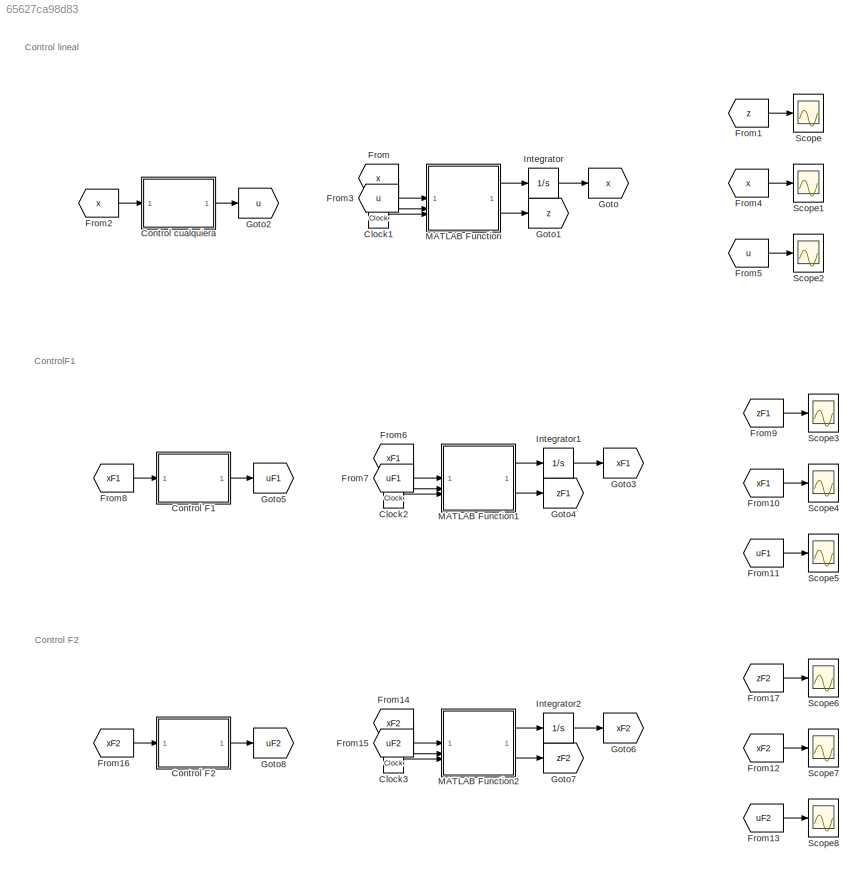
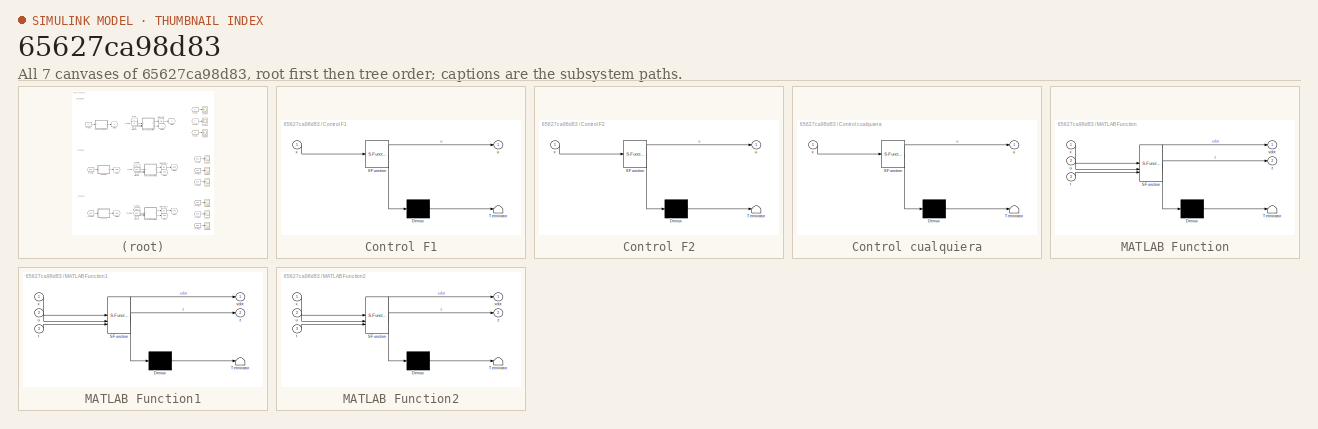
[diagram: thumbnail index - all 7 canvases of the model, root first then tree order]
MODEL slx_65627ca98d83
KIND model
CONFIG AbsTol = auto
CONFIG EnableMultiTasking = off
CONFIG FixedStep = 0.01
CONFIG MaxStep = auto
CONFIG MinStep = auto
CONFIG RelTol = 1e-3
CONFIG SampleTimeConstraint = Unconstrained
CONFIG SolverName = ode4
CONFIG StartTime = 0.0
CONFIG StopTime = 20
BLOCK [Clock] Clock1
BLOCK [Clock] Clock2
BLOCK [Clock] Clock3
BLOCK [SubSystem] Control F1
  ErrorFcn = Stateflow.Translate.translate
  LibrarySourceBlock = simulink/User-Defined\nFunctions/MATLAB Function
  PermitHierarchicalResolution = ExplicitOnly
  SFBlockType = MATLAB Function
  TreatAsAtomicUnit = on
BLOCK [Demux] Control F1/ Demux 
  Outputs = 1
BLOCK [S-Function] Control F1/ SFunction 
  EnableBusSupport = on
  FunctionName = sf_sfun
  Parameters = Fp
  PortCounts = [1 2]
  SFcnIsStateOwnerBlock = off
  SFunctionDeploymentMode = off
  Tag = Stateflow S-Function 4
BLOCK [Terminator] Control F1/ Terminator 
BLOCK [Outport] Control F1/u
BLOCK [Inport] Control F1/x
BLOCK [SubSystem] Control F2
  ErrorFcn = Stateflow.Translate.translate
  LibrarySourceBlock = simulink/User-Defined\nFunctions/MATLAB Function
  PermitHierarchicalResolution = ExplicitOnly
  SFBlockType = MATLAB Function
  TreatAsAtomicUnit = on
BLOCK [Demux] Control F2/ Demux 
  Outputs = 1
BLOCK [S-Function] Control F2/ SFunction 
  EnableBusSupport = on
  FunctionName = sf_sfun
  Parameters = F2
  PortCounts = [1 2]
  SFcnIsStateOwnerBlock = off
  SFunctionDeploymentMode = off
  Tag = Stateflow S-Function 5
BLOCK [Terminator] Control F2/ Terminator 
BLOCK [Outport] Control F2/u
BLOCK [Inport] Control F2/x
BLOCK [SubSystem] Control cualquiera
  ErrorFcn = Stateflow.Translate.translate
  LibrarySourceBlock = simulink/User-Defined\nFunctions/MATLAB Function
  PermitHierarchicalResolution = ExplicitOnly
  SFBlockType = MATLAB Function
  TreatAsAtomicUnit = on
BLOCK [Demux] Control cualquiera/ Demux 
  Outputs = 1
BLOCK [S-Function] Control cualquiera/ SFunction 
  EnableBusSupport = on
  FunctionName = sf_sfun
  Parameters = K,Vd
  PortCounts = [1 2]
  SFcnIsStateOwnerBlock = off
  SFunctionDeploymentMode = off
  Tag = Stateflow S-Function 1
BLOCK [Terminator] Control cualquiera/ Terminator 
BLOCK [Outport] Control cualquiera/u
BLOCK [Inport] Control cualquiera/x
BLOCK [From] From
  GotoTag = x
BLOCK [From] From1
  GotoTag = z
BLOCK [From] From10
  GotoTag = xF1
BLOCK [From] From11
  GotoTag = uF1
BLOCK [From] From12
  GotoTag = xF2
BLOCK [From] From13
  GotoTag = uF2
BLOCK [From] From14
  GotoTag = xF2
BLOCK [From] From15
  GotoTag = uF2
BLOCK [From] From16
  GotoTag = xF2
BLOCK [From] From17
  GotoTag = zF2
BLOCK [From] From2
  GotoTag = x
BLOCK [From] From3
  GotoTag = u
BLOCK [From] From4
  GotoTag = x
BLOCK [From] From5
  GotoTag = u
BLOCK [From] From6
  GotoTag = xF1
BLOCK [From] From7
  GotoTag = uF1
BLOCK [From] From8
  GotoTag = xF1
BLOCK [From] From9
  GotoTag = zF1
BLOCK [Goto] Goto
  GotoTag = x
BLOCK [Goto] Goto1
  GotoTag = z
BLOCK [Goto] Goto2
  GotoTag = u
BLOCK [Goto] Goto3
  GotoTag = xF1
BLOCK [Goto] Goto4
  GotoTag = zF1
BLOCK [Goto] Goto5
  GotoTag = uF1
BLOCK [Goto] Goto6
  GotoTag = xF2
BLOCK [Goto] Goto7
  GotoTag = zF2
BLOCK [Goto] Goto8
  GotoTag = uF2
BLOCK [Integrator] Integrator
  InitialCondition = [0;0]
BLOCK [Integrator] Integrator1
  InitialCondition = [1;2]
BLOCK [Integrator] Integrator2
  InitialCondition = [5;3]
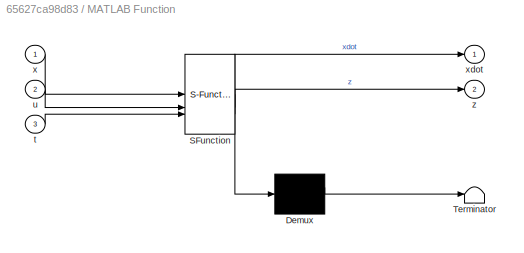
BLOCK [SubSystem] MATLAB Function
  ErrorFcn = Stateflow.Translate.translate
  LibrarySourceBlock = simulink/User-Defined\nFunctions/MATLAB Function
  PermitHierarchicalResolution = ExplicitOnly
  SFBlockType = MATLAB Function
  TreatAsAtomicUnit = on
BLOCK [Demux] MATLAB Function/ Demux 
  Outputs = 1
BLOCK [S-Function] MATLAB Function/ SFunction 
  EnableBusSupport = on
  FunctionName = sf_sfun
  Parameters = A,B,D,S
  PortCounts = [3 3]
  SFcnIsStateOwnerBlock = off
  SFunctionDeploymentMode = off
  Tag = Stateflow S-Function 2
BLOCK [Terminator] MATLAB Function/ Terminator 
BLOCK [Inport] MATLAB Function/t
  Port = 3
BLOCK [Inport] MATLAB Function/u
  Port = 2
BLOCK [Inport] MATLAB Function/x
BLOCK [Outport] MATLAB Function/xdot
BLOCK [Outport] MATLAB Function/z
  Port = 2
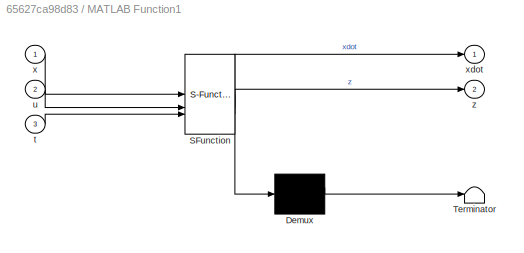
BLOCK [SubSystem] MATLAB Function1
  ErrorFcn = Stateflow.Translate.translate
  LibrarySourceBlock = simulink/User-Defined\nFunctions/MATLAB Function
  PermitHierarchicalResolution = ExplicitOnly
  SFBlockType = MATLAB Function
  TreatAsAtomicUnit = on
BLOCK [Demux] MATLAB Function1/ Demux 
  Outputs = 1
BLOCK [S-Function] MATLAB Function1/ SFunction 
  EnableBusSupport = on
  FunctionName = sf_sfun
  Parameters = A,B,D,S
  PortCounts = [3 3]
  SFcnIsStateOwnerBlock = off
  SFunctionDeploymentMode = off
  Tag = Stateflow S-Function 3
BLOCK [Terminator] MATLAB Function1/ Terminator 
BLOCK [Inport] MATLAB Function1/t
  Port = 3
BLOCK [Inport] MATLAB Function1/u
  Port = 2
BLOCK [Inport] MATLAB Function1/x
BLOCK [Outport] MATLAB Function1/xdot
BLOCK [Outport] MATLAB Function1/z
  Port = 2
BLOCK [SubSystem] MATLAB Function2
  ErrorFcn = Stateflow.Translate.translate
  LibrarySourceBlock = simulink/User-Defined\nFunctions/MATLAB Function
  PermitHierarchicalResolution = ExplicitOnly
  SFBlockType = MATLAB Function
  TreatAsAtomicUnit = on
BLOCK [Demux] MATLAB Function2/ Demux 
  Outputs = 1
BLOCK [S-Function] MATLAB Function2/ SFunction 
  EnableBusSupport = on
  FunctionName = sf_sfun
  Parameters = A,B,D,S
  PortCounts = [3 3]
  SFcnIsStateOwnerBlock = off
  SFunctionDeploymentMode = off
  Tag = Stateflow S-Function 6
BLOCK [Terminator] MATLAB Function2/ Terminator 
BLOCK [Inport] MATLAB Function2/t
  Port = 3
BLOCK [Inport] MATLAB Function2/u
  Port = 2
BLOCK [Inport] MATLAB Function2/x
BLOCK [Outport] MATLAB Function2/xdot
BLOCK [Outport] MATLAB Function2/z
  Port = 2
BLOCK [Scope] Scope
  Floating = off
  NumInputPorts = 1
  ScopeSpecificationString = Simulink.scopes.TimeScopeBlockCfg('CurrentConfiguration', extmgr.ConfigurationSet(extmgr.Configuration('Core','General UI',true),extmgr.Configuration('Core','Source UI',true),extmgr.Configuration('Sources','WiredSimulink',true),extmgr.Configuration('Visuals','Time Domain',true,'SerializedDisplays',{struct('MinYLimReal','-0.625','MaxYLimReal','5.625','YLabelReal','','MinYLimMag','0.00000','MaxYLimM...<+1460ch>
BLOCK [Scope] Scope1
  Floating = off
  NumInputPorts = 1
  ScopeSpecificationString = Simulink.scopes.TimeScopeBlockCfg('CurrentConfiguration', extmgr.ConfigurationSet(extmgr.Configuration('Core','General UI',true),extmgr.Configuration('Core','Source UI',true),extmgr.Configuration('Sources','WiredSimulink',true,'DataLoggingVariableName','ScopeData1'),extmgr.Configuration('Visuals','Time Domain',true,'SerializedDisplays',{struct('MinYLimReal','-2.70513','MaxYLimReal','1.35494','YLab...<+1535ch>
BLOCK [Scope] Scope2
  Floating = off
  NumInputPorts = 1
  ScopeSpecificationString = Simulink.scopes.TimeScopeBlockCfg('CurrentConfiguration', extmgr.ConfigurationSet(extmgr.Configuration('Core','General UI',true),extmgr.Configuration('Core','Source UI',true),extmgr.Configuration('Sources','WiredSimulink',true,'DataLoggingVariableName','ScopeData2'),extmgr.Configuration('Visuals','Time Domain',true,'SerializedDisplays',{struct('MinYLimReal','-10.91239','MaxYLimReal','-1.78849','YL...<+1517ch>
BLOCK [Scope] Scope3
  Floating = off
  NumInputPorts = 1
  ScopeSpecificationString = Simulink.scopes.TimeScopeBlockCfg('CurrentConfiguration', extmgr.ConfigurationSet(extmgr.Configuration('Core','General UI',true),extmgr.Configuration('Core','Source UI',true),extmgr.Configuration('Sources','WiredSimulink',true,'DataLoggingVariableName','ScopeData3'),extmgr.Configuration('Visuals','Time Domain',true,'SerializedDisplays',{struct('MinYLimReal','-4.5','MaxYLimReal','0.5','YLabelReal',...<+1506ch>
BLOCK [Scope] Scope4
  Floating = off
  NumInputPorts = 1
  ScopeSpecificationString = Simulink.scopes.TimeScopeBlockCfg('CurrentConfiguration', extmgr.ConfigurationSet(extmgr.Configuration('Core','General UI',true),extmgr.Configuration('Core','Source UI',true),extmgr.Configuration('Sources','WiredSimulink',true,'DataLoggingVariableName','ScopeData4'),extmgr.Configuration('Visuals','Time Domain',true,'SerializedDisplays',{struct('MinYLimReal','-1.3192','MaxYLimReal','2.3688','YLabel...<+1531ch>
BLOCK [Scope] Scope5
  Floating = off
  NumInputPorts = 1
  ScopeSpecificationString = Simulink.scopes.TimeScopeBlockCfg('CurrentConfiguration', extmgr.ConfigurationSet(extmgr.Configuration('Core','General UI',true),extmgr.Configuration('Core','Source UI',true),extmgr.Configuration('Sources','WiredSimulink',true,'DataLoggingVariableName','ScopeData5'),extmgr.Configuration('Visuals','Time Domain',true,'SerializedDisplays',{struct('MinYLimReal','-0.8292','MaxYLimReal','0.79613','YLabe...<+1507ch>
BLOCK [Scope] Scope6
  Floating = off
  NumInputPorts = 1
  ScopeSpecificationString = Simulink.scopes.TimeScopeBlockCfg('CurrentConfiguration', extmgr.ConfigurationSet(extmgr.Configuration('Core','General UI',true),extmgr.Configuration('Core','Source UI',true),extmgr.Configuration('Sources','WiredSimulink',true,'DataLoggingVariableName','ScopeData6'),extmgr.Configuration('Visuals','Time Domain',true,'SerializedDisplays',{struct('MinYLimReal','-1306648.30782','MaxYLimReal','145184.2...<+1574ch>
BLOCK [Scope] Scope7
  Floating = off
  NumInputPorts = 1
  ScopeSpecificationString = Simulink.scopes.TimeScopeBlockCfg('CurrentConfiguration', extmgr.ConfigurationSet(extmgr.Configuration('Core','General UI',true),extmgr.Configuration('Core','Source UI',true),extmgr.Configuration('Sources','WiredSimulink',true,'DataLoggingVariableName','ScopeData7'),extmgr.Configuration('Visuals','Time Domain',true,'SerializedDisplays',{struct('MinYLimReal','-1.31739','MaxYLimReal','2.3686','YLabe...<+1533ch>
BLOCK [Scope] Scope8
  Floating = off
  NumInputPorts = 1
  ScopeSpecificationString = Simulink.scopes.TimeScopeBlockCfg('CurrentConfiguration', extmgr.ConfigurationSet(extmgr.Configuration('Core','General UI',true),extmgr.Configuration('Core','Source UI',true),extmgr.Configuration('Sources','WiredSimulink',true,'DataLoggingVariableName','ScopeData8'),extmgr.Configuration('Visuals','Time Domain',true,'SerializedDisplays',{struct('MinYLimReal','-2.32906','MaxYLimReal','0.96151','YLab...<+1511ch>
ANNOTATION (root): Control F2
ANNOTATION (root): Control lineal
ANNOTATION (root): ControlF1
LINE Clock1:1 -> MATLAB Function:3
LINE Clock2:1 -> MATLAB Function1:3
LINE Clock3:1 -> MATLAB Function2:3
LINE Control F1:1 -> Goto5:1
LINE Control F2:1 -> Goto8:1
LINE Control cualquiera:1 -> Goto2:1
LINE From10:1 -> Scope4:1
LINE From11:1 -> Scope5:1
LINE From12:1 -> Scope7:1
LINE From13:1 -> Scope8:1
LINE From14:1 -> MATLAB Function2:1
LINE From15:1 -> MATLAB Function2:2
LINE From16:1 -> Control F2:1
LINE From17:1 -> Scope6:1
LINE From1:1 -> Scope:1
LINE From2:1 -> Control cualquiera:1
LINE From3:1 -> MATLAB Function:2
LINE From4:1 -> Scope1:1
LINE From5:1 -> Scope2:1
LINE From6:1 -> MATLAB Function1:1
LINE From7:1 -> MATLAB Function1:2
LINE From8:1 -> Control F1:1
LINE From9:1 -> Scope3:1
LINE From:1 -> MATLAB Function:1
LINE Integrator1:1 -> Goto3:1
LINE Integrator2:1 -> Goto6:1
LINE Integrator:1 -> Goto:1
LINE MATLAB Function1:1 -> Integrator1:1
LINE MATLAB Function1:2 -> Goto4:1
LINE MATLAB Function2:1 -> Integrator2:1
LINE MATLAB Function2:2 -> Goto7:1
LINE MATLAB Function:1 -> Integrator:1
LINE MATLAB Function:2 -> Goto1:1
CHART Control cualquiera states=1 transitions=1
  STATE_LABEL 'eML_blk_kernel()'
  STATE_LABEL 'SCRIPT:\nfunction u = fcn(K,x, Vd)\n\nu=-K*x+Vd;\n'
CHART MATLAB Function states=1 transitions=1
  STATE_LABEL 'eML_blk_kernel()'
  STATE_LABEL 'SCRIPT:\nfunction [xdot,z] = fcn(x, A, B, u, D, S,t)\n\nif t<5\n    q=0;\nelse\n    q=cos(t);\nend\n\nxdot=A*x+B*u+S*q;\n\nz = D*x;\n'
CHART MATLAB Function1 states=1 transitions=1
  STATE_LABEL 'eML_blk_kernel()'
  STATE_LABEL 'SCRIPT:\nfunction [xdot,z] = fcn(x, A, B, u, D, S,t)\n\nif t<5\n    q=0;\nelse\n    q=cos(t);\nend\n\nxdot=A*x+B*u+S*q;\n\nz = D*x;\n'
CHART Control F1 states=1 transitions=1
  STATE_LABEL 'eML_blk_kernel()'
  STATE_LABEL 'SCRIPT:\nfunction u = fcn(Fp,x)\n\nu=Fp*x;\n'
CHART Control F2 states=1 transitions=1
  STATE_LABEL 'eML_blk_kernel()'
  STATE_LABEL 'SCRIPT:\nfunction u = fcn(F2,x)\n\nu=F2*x;\n'
CHART MATLAB Function2 states=1 transitions=1
  STATE_LABEL 'eML_blk_kernel()'
  STATE_LABEL 'SCRIPT:\nfunction [xdot,z] = fcn(x, A, B, u, D, S,t)\n\nif t<5\n    q=0;\nelse\n    q=cos(t);\nend\n\nxdot=A*x+B*u+S*q;\n\nz = D*x;\n'
CHART  states=0 transitions=0
CHART  states=0 transitions=0
CHART  states=0 transitions=0
CHART  states=0 transitions=0
CHART  states=0 transitions=0
CHART  states=0 transitions=0
